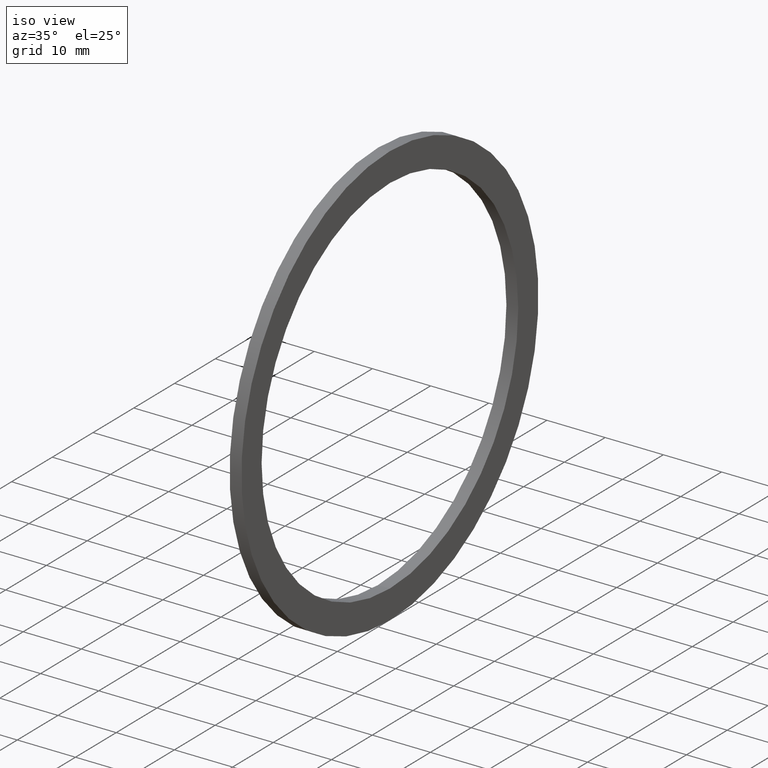
[diagram: clean part render]
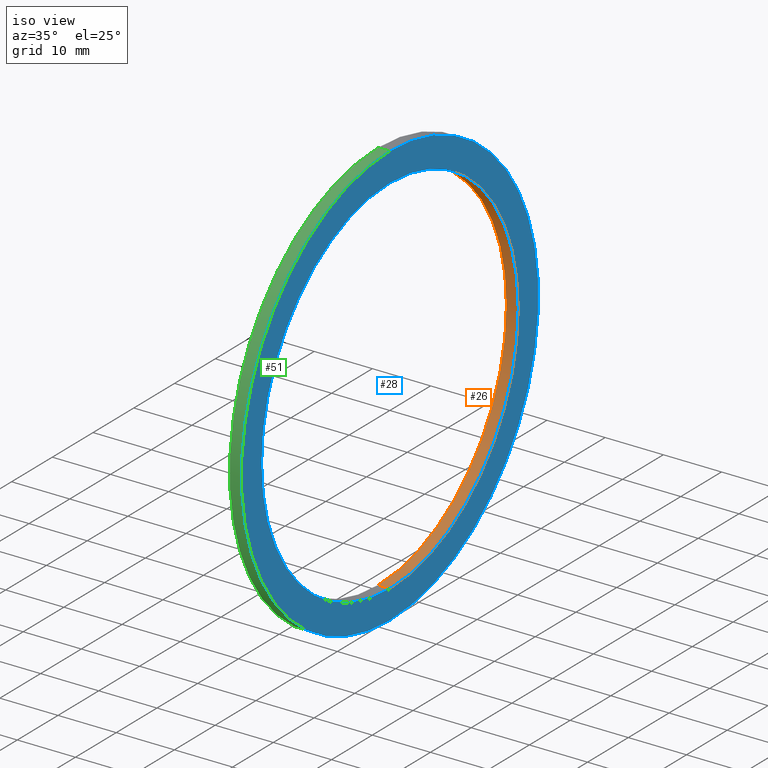
[diagram: same view with three faces highlighted in distinct colors, each labeled with its STEP entity id]
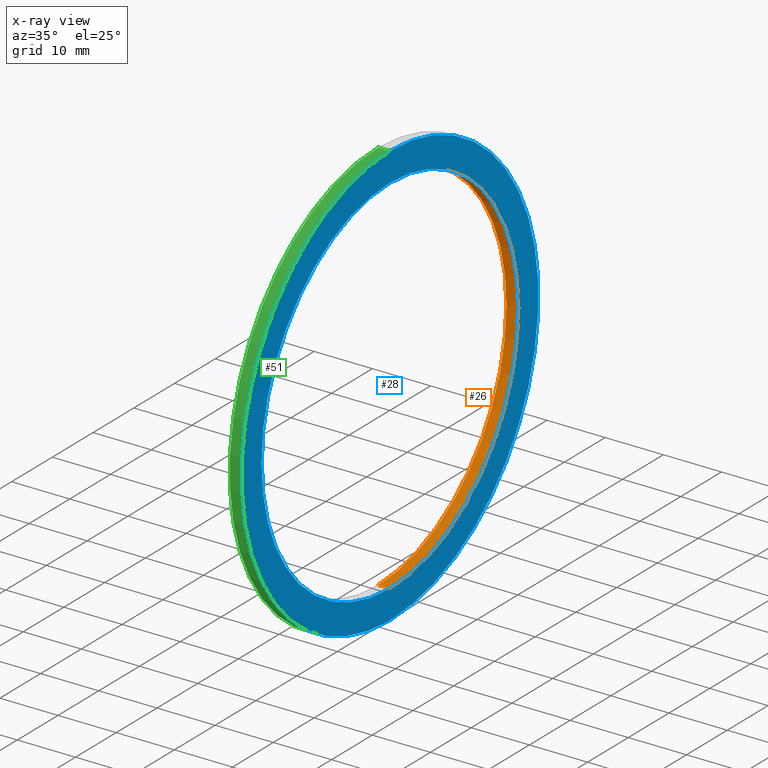
[diagram: x-ray of the same camera — body ghosted, the three highlighted faces saturated]
A machine part, iso view with three faces highlighted in distinct colors.
The next image is the same camera in x-ray (body ghosted, the three faces saturated) — at least one of them is partly hidden behind the body in this view.
Their STEP definitions:

[orange] entity #26 — the highlighted cylindrical surface (partial cylindrical patch) has radius 31.496 mm, axis along (-1, 0, 0).
#2 = ORIENTED_EDGE ( 'NONE', *, *, #50, .F. ) ;
#4 = ORIENTED_EDGE ( 'NONE', *, *, #52, .T. ) ;
#6 = ORIENTED_EDGE ( 'NONE', *, *, #33, .T. ) ;
#10 = ORIENTED_EDGE ( 'NONE', *, *, #24, .F. ) ;
#21 = VERTEX_POINT ( 'NONE', #113 ) ;
#22 = VERTEX_POINT ( 'NONE', #118 ) ;
#24 = EDGE_CURVE ( 'NONE', #21, #57, #89, .T. ) ;
#26 = ADVANCED_FACE ( 'NONE', ( #85 ), #83, .F. ) ;
#33 = EDGE_CURVE ( 'NONE', #22, #58, #106, .T. ) ;
#49 = EDGE_LOOP ( 'NONE', ( #10, #2, #6, #4 ) ) ;
#50 = EDGE_CURVE ( 'NONE', #22, #21, #96, .T. ) ;
#52 = EDGE_CURVE ( 'NONE', #58, #57, #125, .T. ) ;
#57 = VERTEX_POINT ( 'NONE', #224 ) ;
#58 = VERTEX_POINT ( 'NONE', #186 ) ;
#67 = DIRECTION ( 'NONE',  ( 0.0000000000000000000, 0.0000000000000000000, 1.000000000000000000 ) ) ;
#68 = DIRECTION ( 'NONE',  ( -1.000000000000000000, 0.0000000000000000000, 0.0000000000000000000 ) ) ;
#69 = CARTESIAN_POINT ( 'NONE',  ( 0.0000000000000000000, 0.0000000000000000000, 0.0000000000000000000 ) ) ;
#70 = AXIS2_PLACEMENT_3D ( 'NONE', #69, #68, #67 ) ;
#73 = DIRECTION ( 'NONE',  ( 0.0000000000000000000, 0.0000000000000000000, 1.000000000000000000 ) ) ;
#83 = CYLINDRICAL_SURFACE ( 'NONE', #84, 1.240000000000000000 ) ;
#84 = AXIS2_PLACEMENT_3D ( 'NONE', #139, #138, #73 ) ;
#85 = FACE_OUTER_BOUND ( 'NONE', #49, .T. ) ;
#86 = DIRECTION ( 'NONE',  ( -1.000000000000000000, 0.0000000000000000000, 0.0000000000000000000 ) ) ;
#89 = LINE ( 'NONE', #92, #91 ) ;
#91 = VECTOR ( 'NONE', #86, 39.37007874015748100 ) ;
#92 = CARTESIAN_POINT ( 'NONE',  ( -1.721125226614714300, 1.518562030942717800E-016, -1.240000000000000000 ) ) ;
#96 = CIRCLE ( 'NONE', #131, 1.240000000000000000 ) ;
#106 = LINE ( 'NONE', #145, #144 ) ;
#113 = CARTESIAN_POINT ( 'NONE',  ( 0.07999999999999996000, 1.518562030942717800E-016, -1.240000000000000000 ) ) ;
#118 = CARTESIAN_POINT ( 'NONE',  ( 0.07999999999999996000, 0.0000000000000000000, 1.240000000000000000 ) ) ;
#125 = CIRCLE ( 'NONE', #70, 1.240000000000000000 ) ;
#128 = DIRECTION ( 'NONE',  ( 0.0000000000000000000, 0.0000000000000000000, 1.000000000000000000 ) ) ;
#129 = DIRECTION ( 'NONE',  ( -1.000000000000000000, 0.0000000000000000000, 0.0000000000000000000 ) ) ;
#130 = CARTESIAN_POINT ( 'NONE',  ( 0.07999999999999996000, 0.0000000000000000000, 0.0000000000000000000 ) ) ;
#131 = AXIS2_PLACEMENT_3D ( 'NONE', #130, #129, #128 ) ;
#138 = DIRECTION ( 'NONE',  ( -1.000000000000000000, 0.0000000000000000000, 0.0000000000000000000 ) ) ;
#139 = CARTESIAN_POINT ( 'NONE',  ( -1.721125226614714300, 0.0000000000000000000, 0.0000000000000000000 ) ) ;
#143 = DIRECTION ( 'NONE',  ( -1.000000000000000000, 0.0000000000000000000, 0.0000000000000000000 ) ) ;
#144 = VECTOR ( 'NONE', #143, 39.37007874015748100 ) ;
#145 = CARTESIAN_POINT ( 'NONE',  ( -1.721125226614714300, 0.0000000000000000000, 1.240000000000000000 ) ) ;
#186 = CARTESIAN_POINT ( 'NONE',  ( 0.0000000000000000000, 0.0000000000000000000, 1.240000000000000000 ) ) ;
#224 = CARTESIAN_POINT ( 'NONE',  ( 0.0000000000000000000, 1.518562030942717800E-016, -1.240000000000000000 ) ) ;

[blue] entity #28 — the highlighted planar face has unit normal (1, 0, 0).
#16 = VERTEX_POINT ( 'NONE', #146 ) ;
#17 = VERTEX_POINT ( 'NONE', #115 ) ;
#18 = EDGE_CURVE ( 'NONE', #16, #17, #88, .T. ) ;
#21 = VERTEX_POINT ( 'NONE', #113 ) ;
#22 = VERTEX_POINT ( 'NONE', #118 ) ;
#25 = ORIENTED_EDGE ( 'NONE', *, *, #50, .T. ) ;
#27 = EDGE_LOOP ( 'NONE', ( #55, #34 ) ) ;
#28 = ADVANCED_FACE ( 'NONE', ( #141, #140 ), #71, .T. ) ;
#31 = EDGE_LOOP ( 'NONE', ( #25, #35 ) ) ;
#34 = ORIENTED_EDGE ( 'NONE', *, *, #54, .F. ) ;
#35 = ORIENTED_EDGE ( 'NONE', *, *, #43, .T. ) ;
#43 = EDGE_CURVE ( 'NONE', #21, #22, #77, .T. ) ;
#50 = EDGE_CURVE ( 'NONE', #22, #21, #96, .T. ) ;
#54 = EDGE_CURVE ( 'NONE', #17, #16, #66, .T. ) ;
#55 = ORIENTED_EDGE ( 'NONE', *, *, #18, .F. ) ;
#62 = DIRECTION ( 'NONE',  ( 0.0000000000000000000, 0.0000000000000000000, 1.000000000000000000 ) ) ;
#63 = DIRECTION ( 'NONE',  ( -1.000000000000000000, 0.0000000000000000000, 0.0000000000000000000 ) ) ;
#64 = CARTESIAN_POINT ( 'NONE',  ( 0.07999999999999996000, 0.0000000000000000000, 0.0000000000000000000 ) ) ;
#65 = AXIS2_PLACEMENT_3D ( 'NONE', #64, #63, #62 ) ;
#66 = CIRCLE ( 'NONE', #65, 1.435000000000000100 ) ;
#71 = PLANE ( 'NONE',  #105 ) ;
#72 = CARTESIAN_POINT ( 'NONE',  ( 0.08000000000000002900, -1.240000000000000000, 0.0000000000000000000 ) ) ;
#74 = DIRECTION ( 'NONE',  ( -1.000000000000000000, 0.0000000000000000000, 0.0000000000000000000 ) ) ;
#75 = CARTESIAN_POINT ( 'NONE',  ( 0.07999999999999996000, 0.0000000000000000000, 0.0000000000000000000 ) ) ;
#76 = AXIS2_PLACEMENT_3D ( 'NONE', #75, #74, #102 ) ;
#77 = CIRCLE ( 'NONE', #76, 1.240000000000000000 ) ;
#87 = AXIS2_PLACEMENT_3D ( 'NONE', #95, #94, #93 ) ;
#88 = CIRCLE ( 'NONE', #87, 1.435000000000000100 ) ;
#93 = DIRECTION ( 'NONE',  ( 0.0000000000000000000, 0.0000000000000000000, 1.000000000000000000 ) ) ;
#94 = DIRECTION ( 'NONE',  ( -1.000000000000000000, 0.0000000000000000000, 0.0000000000000000000 ) ) ;
#95 = CARTESIAN_POINT ( 'NONE',  ( 0.07999999999999996000, 0.0000000000000000000, 0.0000000000000000000 ) ) ;
#96 = CIRCLE ( 'NONE', #131, 1.240000000000000000 ) ;
#102 = DIRECTION ( 'NONE',  ( 0.0000000000000000000, 0.0000000000000000000, 1.000000000000000000 ) ) ;
#103 = DIRECTION ( 'NONE',  ( 0.0000000000000000000, 0.0000000000000000000, -1.000000000000000000 ) ) ;
#104 = DIRECTION ( 'NONE',  ( 1.000000000000000000, 0.0000000000000000000, 0.0000000000000000000 ) ) ;
#105 = AXIS2_PLACEMENT_3D ( 'NONE', #72, #104, #103 ) ;
#113 = CARTESIAN_POINT ( 'NONE',  ( 0.07999999999999996000, 1.518562030942717800E-016, -1.240000000000000000 ) ) ;
#115 = CARTESIAN_POINT ( 'NONE',  ( 0.07999999999999996000, 1.757368156776452000E-016, -1.435000000000000100 ) ) ;
#118 = CARTESIAN_POINT ( 'NONE',  ( 0.07999999999999996000, 0.0000000000000000000, 1.240000000000000000 ) ) ;
#128 = DIRECTION ( 'NONE',  ( 0.0000000000000000000, 0.0000000000000000000, 1.000000000000000000 ) ) ;
#129 = DIRECTION ( 'NONE',  ( -1.000000000000000000, 0.0000000000000000000, 0.0000000000000000000 ) ) ;
#130 = CARTESIAN_POINT ( 'NONE',  ( 0.07999999999999996000, 0.0000000000000000000, 0.0000000000000000000 ) ) ;
#131 = AXIS2_PLACEMENT_3D ( 'NONE', #130, #129, #128 ) ;
#140 = FACE_OUTER_BOUND ( 'NONE', #27, .T. ) ;
#141 = FACE_BOUND ( 'NONE', #31, .T. ) ;
#146 = CARTESIAN_POINT ( 'NONE',  ( 0.07999999999999996000, 0.0000000000000000000, 1.435000000000000100 ) ) ;

[green] entity #51 — the highlighted cylindrical surface (partial cylindrical patch) has radius 36.449 mm, axis along (-1, 0, 0).
#1 = EDGE_CURVE ( 'NONE', #12, #45, #117, .T. ) ;
#3 = ORIENTED_EDGE ( 'NONE', *, *, #1, .F. ) ;
#12 = VERTEX_POINT ( 'NONE', #61 ) ;
#16 = VERTEX_POINT ( 'NONE', #146 ) ;
#17 = VERTEX_POINT ( 'NONE', #115 ) ;
#29 = EDGE_LOOP ( 'NONE', ( #53, #30, #47, #3 ) ) ;
#30 = ORIENTED_EDGE ( 'NONE', *, *, #54, .T. ) ;
#39 = EDGE_CURVE ( 'NONE', #16, #45, #137, .T. ) ;
#45 = VERTEX_POINT ( 'NONE', #97 ) ;
#47 = ORIENTED_EDGE ( 'NONE', *, *, #39, .T. ) ;
#51 = ADVANCED_FACE ( 'NONE', ( #127 ), #126, .T. ) ;
#53 = ORIENTED_EDGE ( 'NONE', *, *, #56, .F. ) ;
#54 = EDGE_CURVE ( 'NONE', #17, #16, #66, .T. ) ;
#56 = EDGE_CURVE ( 'NONE', #17, #12, #252, .T. ) ;
#61 = CARTESIAN_POINT ( 'NONE',  ( 0.0000000000000000000, 1.757368156776452000E-016, -1.435000000000000100 ) ) ;
#62 = DIRECTION ( 'NONE',  ( 0.0000000000000000000, 0.0000000000000000000, 1.000000000000000000 ) ) ;
#63 = DIRECTION ( 'NONE',  ( -1.000000000000000000, 0.0000000000000000000, 0.0000000000000000000 ) ) ;
#64 = CARTESIAN_POINT ( 'NONE',  ( 0.07999999999999996000, 0.0000000000000000000, 0.0000000000000000000 ) ) ;
#65 = AXIS2_PLACEMENT_3D ( 'NONE', #64, #63, #62 ) ;
#66 = CIRCLE ( 'NONE', #65, 1.435000000000000100 ) ;
#97 = CARTESIAN_POINT ( 'NONE',  ( 0.0000000000000000000, 0.0000000000000000000, 1.435000000000000100 ) ) ;
#115 = CARTESIAN_POINT ( 'NONE',  ( 0.07999999999999996000, 1.757368156776452000E-016, -1.435000000000000100 ) ) ;
#116 = AXIS2_PLACEMENT_3D ( 'NONE', #132, #151, #148 ) ;
#117 = CIRCLE ( 'NONE', #116, 1.435000000000000100 ) ;
#121 = DIRECTION ( 'NONE',  ( 0.0000000000000000000, 0.0000000000000000000, 1.000000000000000000 ) ) ;
#122 = DIRECTION ( 'NONE',  ( -1.000000000000000000, 0.0000000000000000000, 0.0000000000000000000 ) ) ;
#123 = CARTESIAN_POINT ( 'NONE',  ( -1.721125226614714300, 0.0000000000000000000, 0.0000000000000000000 ) ) ;
#124 = AXIS2_PLACEMENT_3D ( 'NONE', #123, #122, #121 ) ;
#126 = CYLINDRICAL_SURFACE ( 'NONE', #124, 1.435000000000000100 ) ;
#127 = FACE_OUTER_BOUND ( 'NONE', #29, .T. ) ;
#132 = CARTESIAN_POINT ( 'NONE',  ( 0.0000000000000000000, 0.0000000000000000000, 0.0000000000000000000 ) ) ;
#134 = DIRECTION ( 'NONE',  ( -1.000000000000000000, 0.0000000000000000000, 0.0000000000000000000 ) ) ;
#135 = VECTOR ( 'NONE', #134, 39.37007874015748100 ) ;
#136 = CARTESIAN_POINT ( 'NONE',  ( -1.721125226614714300, 0.0000000000000000000, 1.435000000000000100 ) ) ;
#137 = LINE ( 'NONE', #136, #135 ) ;
#146 = CARTESIAN_POINT ( 'NONE',  ( 0.07999999999999996000, 0.0000000000000000000, 1.435000000000000100 ) ) ;
#148 = DIRECTION ( 'NONE',  ( 0.0000000000000000000, 0.0000000000000000000, 1.000000000000000000 ) ) ;
#151 = DIRECTION ( 'NONE',  ( -1.000000000000000000, 0.0000000000000000000, 0.0000000000000000000 ) ) ;
#171 = VECTOR ( 'NONE', #187, 39.37007874015748100 ) ;
#183 = CARTESIAN_POINT ( 'NONE',  ( -1.721125226614714300, 1.757368156776452000E-016, -1.435000000000000100 ) ) ;
#187 = DIRECTION ( 'NONE',  ( -1.000000000000000000, 0.0000000000000000000, 0.0000000000000000000 ) ) ;
#252 = LINE ( 'NONE', #183, #171 ) ;